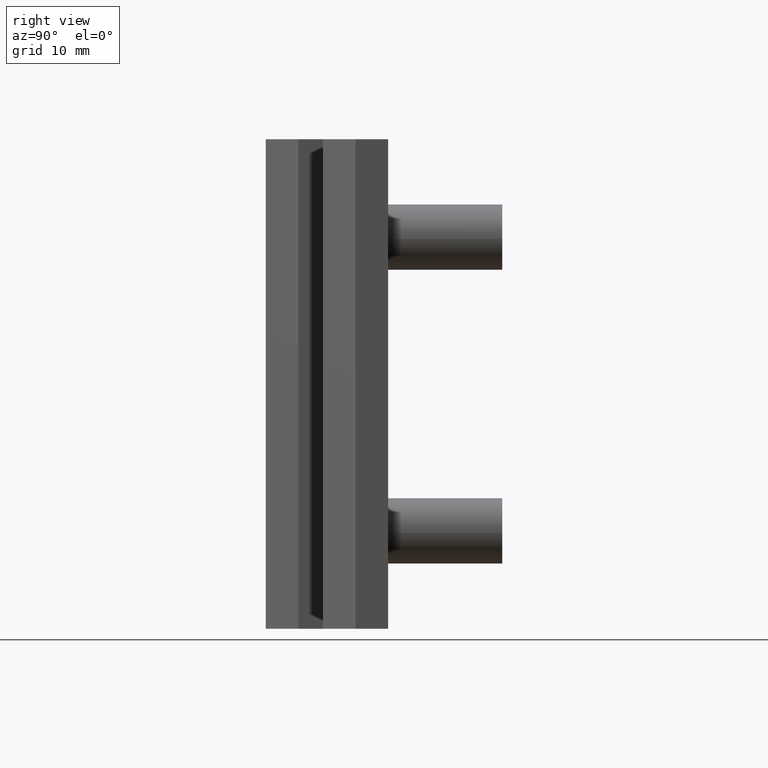
[diagram: clean part render]
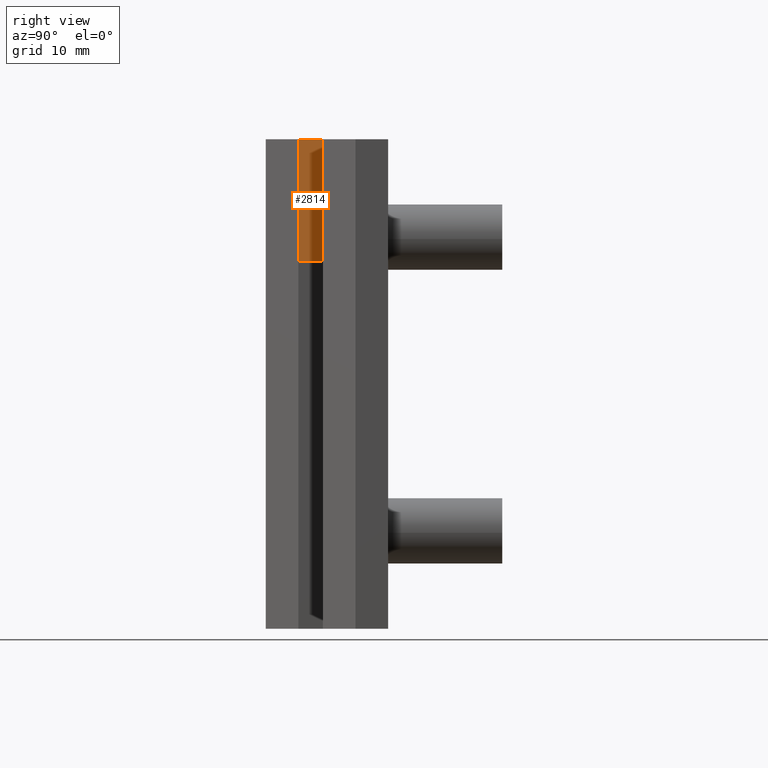
[diagram: same view with one face highlighted and labeled with its STEP entity id]
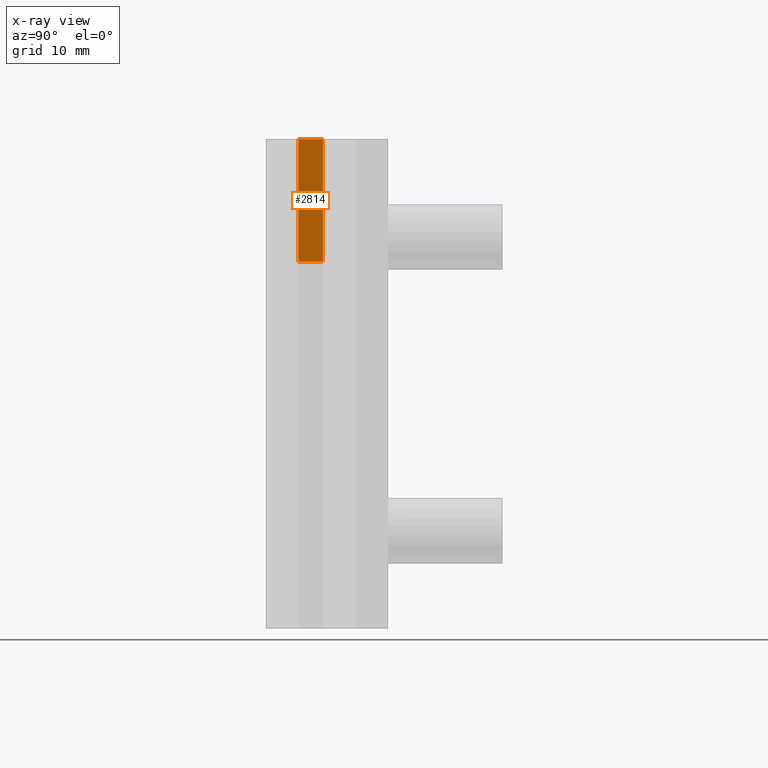
[diagram: x-ray of the same camera — body ghosted, the highlighted face saturated]
A machine part, right view. The second image highlights one B-rep face of the part: STEP entity #2814.
The next image is the same camera in x-ray: the body ghosted, the highlighted face saturated — about 0% of this face is hidden behind the body in this view.
In plain terms, the highlighted face is a freeform B-spline surface patch.
Its self-contained STEP definition (entity closure, byte-faithful):
#2143=CARTESIAN_POINT('',(7.500000000000000,-3.0,44.999999999951541));
#2144=VERTEX_POINT('',#2143);
#2145=CARTESIAN_POINT('',(7.500000000000000,0.0,44.999999999951541));
#2146=VERTEX_POINT('',#2145);
#2147=CARTESIAN_POINT('',(7.500000000000000,-3.0,44.999999999951541));
#2148=CARTESIAN_POINT('',(7.500000000000000,0.0,44.999999999951541));
#2149=QUASI_UNIFORM_CURVE('',1,(#2147,#2148),.UNSPECIFIED.,.F.,.U.);
#2150=EDGE_CURVE('',#2144,#2146,#2149,.T.);
#2420=CARTESIAN_POINT('',(7.500000000000000,-3.0,60.0));
#2421=VERTEX_POINT('',#2420);
#2427=CARTESIAN_POINT('',(7.500000000000000,0.0,60.0));
#2428=VERTEX_POINT('',#2427);
#2429=CARTESIAN_POINT('',(7.500000000000000,0.0,60.0));
#2430=CARTESIAN_POINT('',(7.500000000000000,-3.0,60.0));
#2431=QUASI_UNIFORM_CURVE('',1,(#2429,#2430),.UNSPECIFIED.,.F.,.U.);
#2432=EDGE_CURVE('',#2428,#2421,#2431,.T.);
#2774=CARTESIAN_POINT('',(7.500000000000000,-3.0,60.0));
#2775=CARTESIAN_POINT('',(7.500000000000000,-3.0,44.999999999951541));
#2776=QUASI_UNIFORM_CURVE('',1,(#2774,#2775),.UNSPECIFIED.,.F.,.U.);
#2777=EDGE_CURVE('',#2421,#2144,#2776,.T.);
#2799=CARTESIAN_POINT('',(7.500000000000000,-3.149849994185418,60.749249970929512));
#2800=CARTESIAN_POINT('',(7.500000000000000,-3.149849994185418,44.250749626690677));
#2801=CARTESIAN_POINT('',(7.500000000000000,0.149850074651688,60.749249970929512));
#2802=CARTESIAN_POINT('',(7.500000000000000,0.149850074651688,44.250749626690677));
#2803=B_SPLINE_SURFACE_WITH_KNOTS('',1,1,((#2799,#2801),(#2800,#2802)),.UNSPECIFIED.,.F.,.F.,.U.,(2,2),(2,2),(0.0,16.498500344238831),(0.0,3.299700068837106),.UNSPECIFIED.);
#2804=ORIENTED_EDGE('',*,*,#2777,.T.);
#2805=ORIENTED_EDGE('',*,*,#2150,.T.);
#2806=CARTESIAN_POINT('',(7.500000000000000,0.0,60.0));
#2807=CARTESIAN_POINT('',(7.500000000000000,0.0,44.999999999951541));
#2808=QUASI_UNIFORM_CURVE('',1,(#2806,#2807),.UNSPECIFIED.,.F.,.U.);
#2809=EDGE_CURVE('',#2428,#2146,#2808,.T.);
#2810=ORIENTED_EDGE('',*,*,#2809,.F.);
#2811=ORIENTED_EDGE('',*,*,#2432,.T.);
#2812=EDGE_LOOP('',(#2804,#2805,#2810,#2811));
#2813=FACE_OUTER_BOUND('',#2812,.T.);
#2814=ADVANCED_FACE('',(#2813),#2803,.T.);